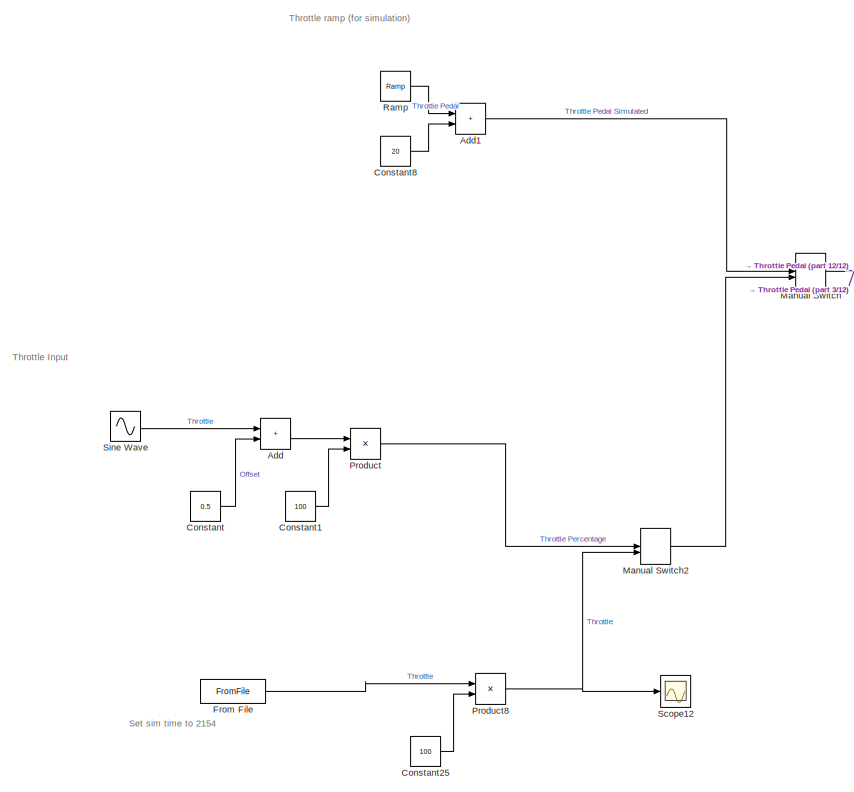
[diagram: root canvas - part 1/12, top left region]
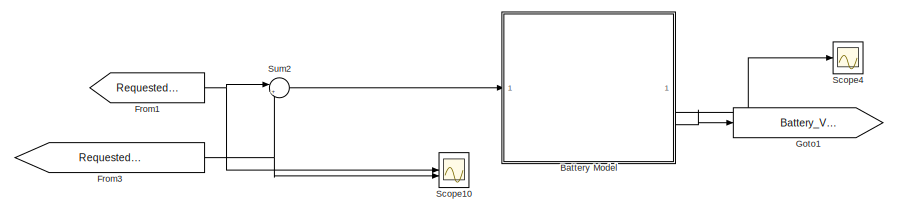
[diagram: root canvas - part 2/12, top right region]
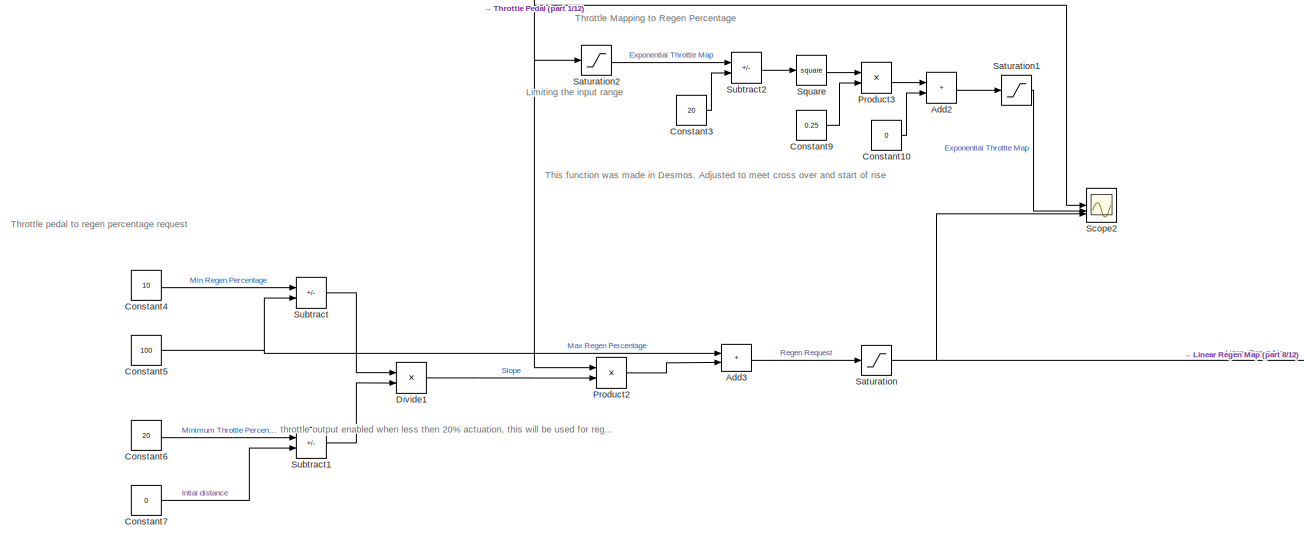
[diagram: root canvas - part 3/12, top center region]
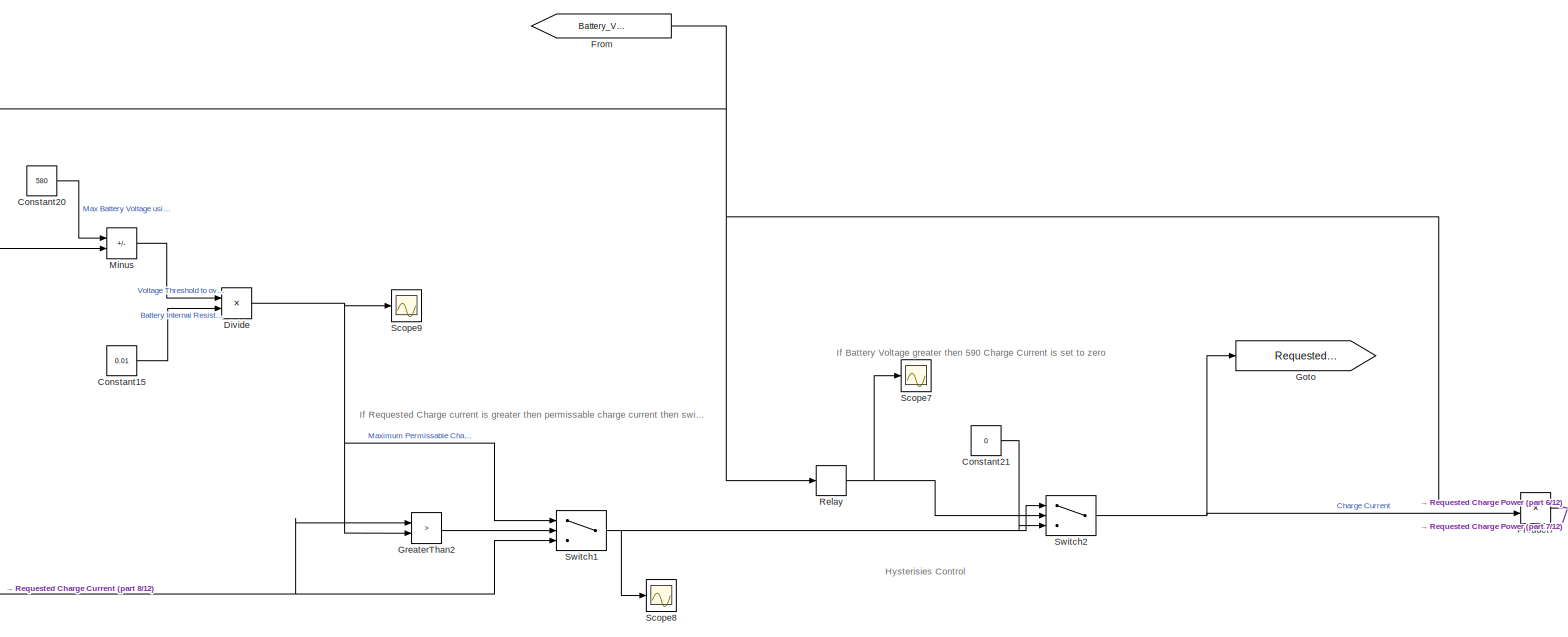
[diagram: root canvas - part 4/12, middle right region]
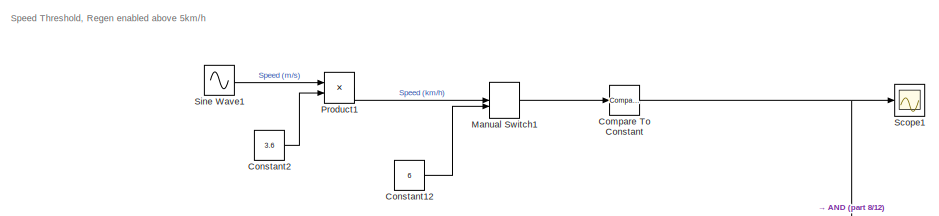
[diagram: root canvas - part 5/12, middle left region]
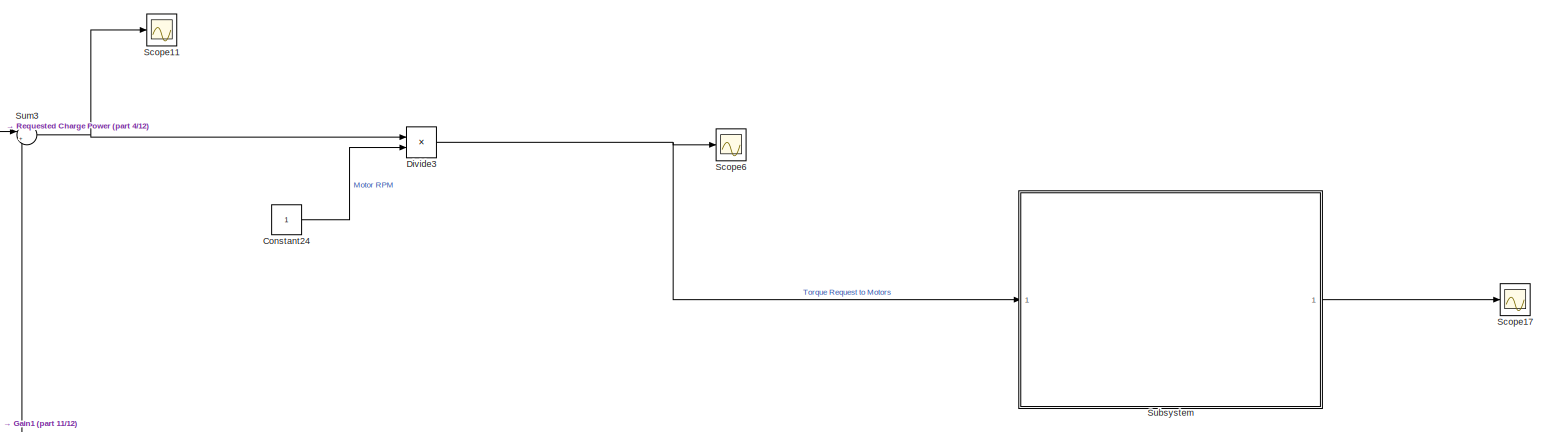
[diagram: root canvas - part 6/12, middle right region]
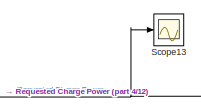
[diagram: root canvas - part 7/12, middle right region]
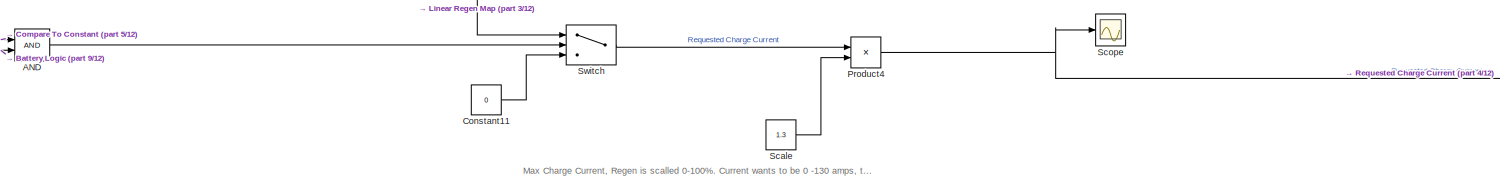
[diagram: root canvas - part 8/12, central region]
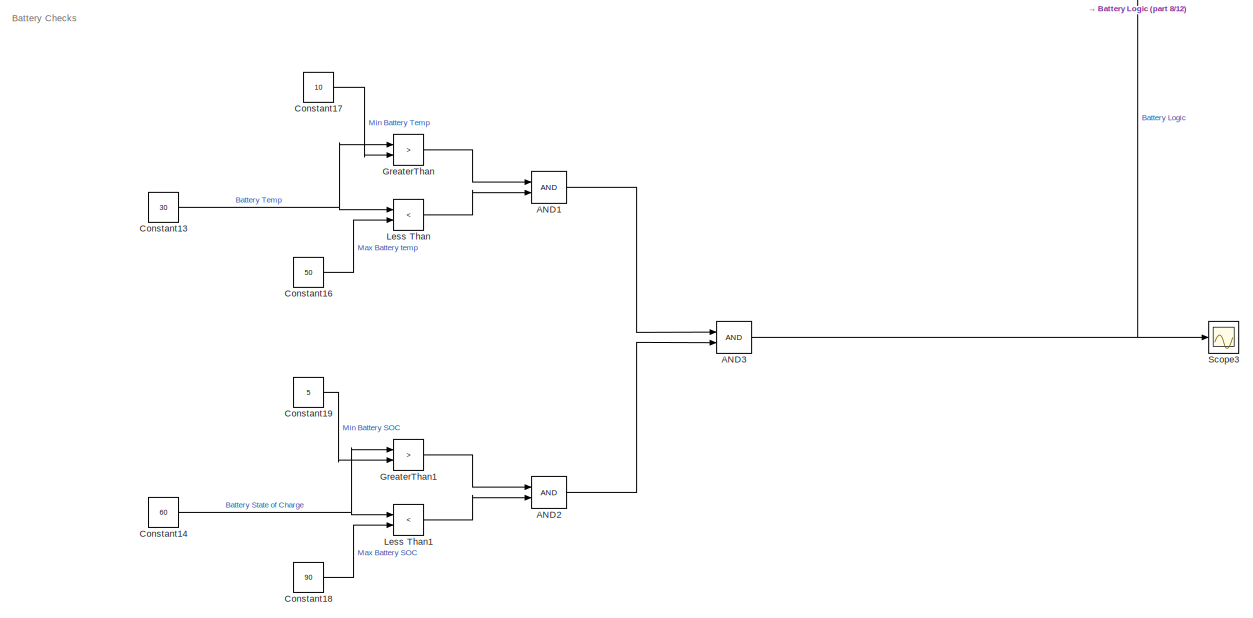
[diagram: root canvas - part 9/12, central region]
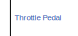
[diagram: root canvas - part 10/12, middle left region]
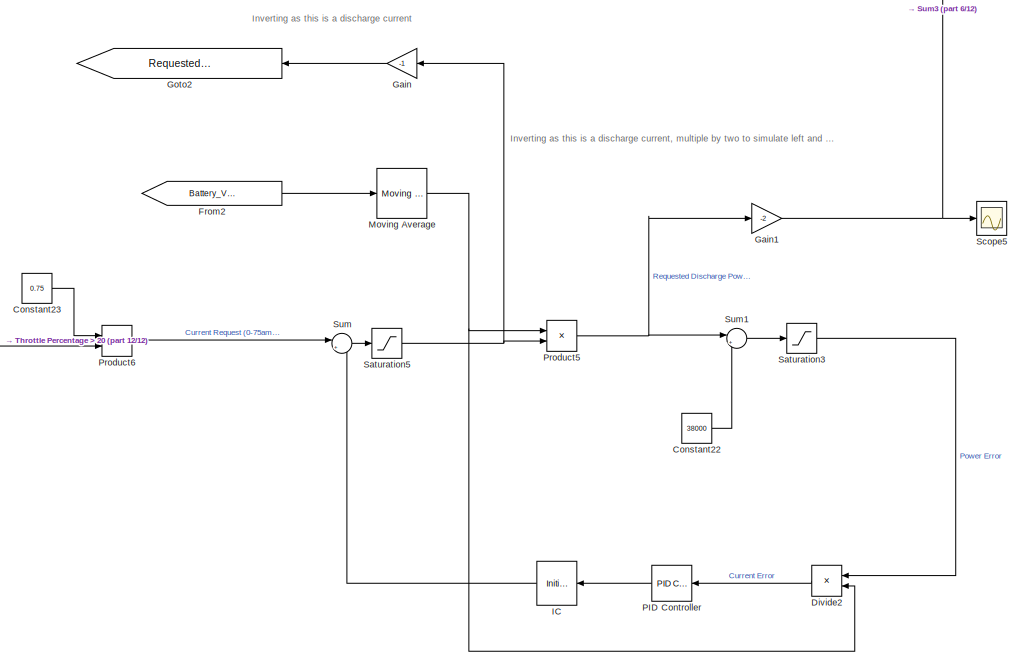
[diagram: root canvas - part 11/12, bottom center region]
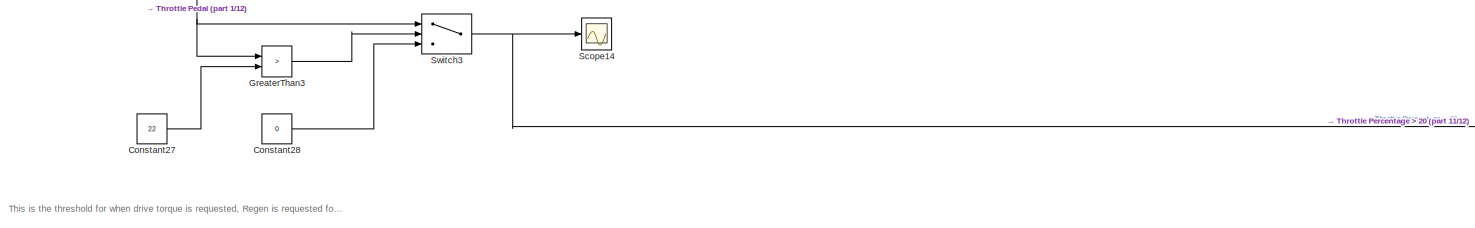
[diagram: root canvas - part 12/12, bottom left region]
MODEL slx_a7f5a27d71c5
KIND model
CONFIG AbsTol = auto
CONFIG EnableMultiTasking = off
CONFIG FixedStep = auto
CONFIG MaxStep = auto
CONFIG MinStep = auto
CONFIG RelTol = 1e-3
CONFIG SampleTimeConstraint = Unconstrained
CONFIG SolverName = VariableStepAuto
CONFIG StartTime = 0.0
CONFIG StopTime = 10
BLOCK [Logic] AND
  AllPortsSameDT = off
  IconShape = distinctive
  OutDataTypeStr = boolean
BLOCK [Logic] AND1
  AllPortsSameDT = off
  IconShape = distinctive
  OutDataTypeStr = boolean
BLOCK [Logic] AND2
  AllPortsSameDT = off
  IconShape = distinctive
  OutDataTypeStr = boolean
BLOCK [Logic] AND3
  AllPortsSameDT = off
  IconShape = distinctive
  OutDataTypeStr = boolean
BLOCK [Sum] Add
  IconShape = rectangular
BLOCK [Sum] Add1
  IconShape = rectangular
BLOCK [Sum] Add2
  IconShape = rectangular
BLOCK [Sum] Add3
  IconShape = rectangular
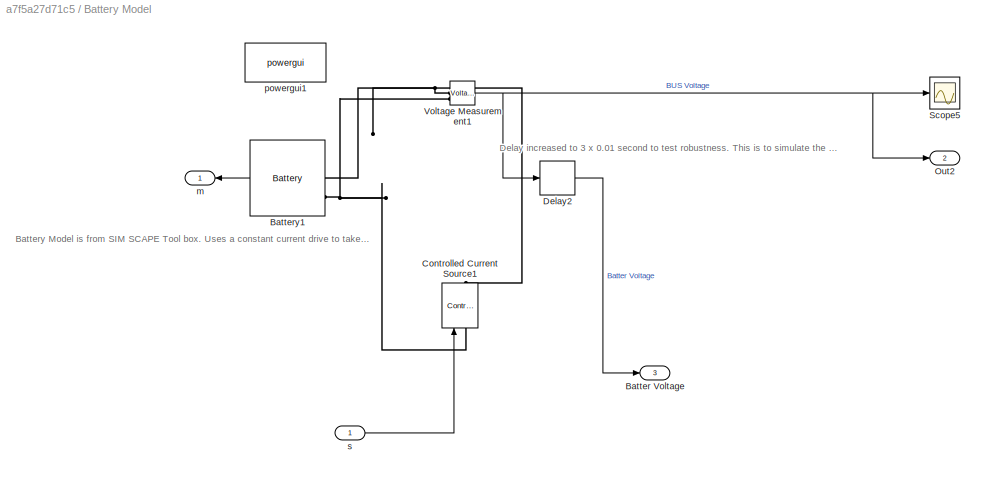
BLOCK [SubSystem] Battery Model
BLOCK [Outport] Battery Model/Batter Voltage
  Port = 3
BLOCK [Reference] Battery Model/Battery1  REF=spsBatteryLib/Battery
  LibrarySourceBlock = sps_lib/Sources/Battery
  SourceBlock = spsBatteryLib/Battery
  SourceType = Battery
BLOCK [Reference] Battery Model/Controlled Current Source1  REF=spsControlledCurrentSourceLib/Controlled Current Source
  LibrarySourceBlock = sps_lib/Sources/Controlled Current Source
  SourceBlock = spsControlledCurrentSourceLib/Controlled Current Source
  SourceType = Controlled Current Source
BLOCK [Delay] Battery Model/Delay2
  DelayLength = 5
  InitialCondition = 580
  InputPortMap = u0
BLOCK [Outport] Battery Model/Out2
  Port = 2
BLOCK [Scope] Battery Model/Scope5
  Floating = off
  NumInputPorts = 1
  ScopeSpecificationString = Simulink.scopes.TimeScopeBlockCfg('CurrentConfiguration', extmgr.ConfigurationSet(extmgr.Configuration('Core','General UI',true),extmgr.Configuration('Core','Source UI',true),extmgr.Configuration('Sources','WiredSimulink',true,'DataLoggingVariableName','ScopeData1'),extmgr.Configuration('Visuals','Time Domain',true,'SerializedDisplays',{struct('MinYLimReal','576.69043','MaxYLimReal','580.29452','Y...<+1550ch>
BLOCK [Reference] Battery Model/Voltage Measurement1  REF=spsVoltageMeasurementLib/Voltage Measurement
  LibrarySourceBlock = sps_lib/Sensors and Measurements/Voltage Measurement
  SourceBlock = spsVoltageMeasurementLib/Voltage Measurement
  SourceType = Voltage Measurement
  UserDataPersistent = on
BLOCK [Outport] Battery Model/m
BLOCK [Reference] Battery Model/powergui1  REF=sps_lib/powergui
  LibrarySourceBlock = sps_lib/powergui
  Priority = 1
  SourceBlock = sps_lib/powergui
  SourceType = PSB option menu block
BLOCK [Inport] Battery Model/s
BLOCK [Reference] Compare To Constant  REF=simulink/Logic and Bit
Operations/Compare
To Constant
  SourceBlock = simulink/Logic and Bit\nOperations/Compare\nTo Constant
  SourceType = Compare To Constant
BLOCK [Constant] Constant
  Value = 0.5
BLOCK [Constant] Constant1
  Value = 100
BLOCK [Constant] Constant10
  Value = 0
BLOCK [Constant] Constant11
  Value = 0
BLOCK [Constant] Constant12
  Value = 6
BLOCK [Constant] Constant13
  Value = 30
BLOCK [Constant] Constant14
  Value = 60
BLOCK [Constant] Constant15
  Value = 0.01
BLOCK [Constant] Constant16
  Value = 50
BLOCK [Constant] Constant17
  Value = 10
BLOCK [Constant] Constant18
  Value = 90
BLOCK [Constant] Constant19
  Value = 5
BLOCK [Constant] Constant2
  Value = 3.6
BLOCK [Constant] Constant20
  Value = 580
BLOCK [Constant] Constant21
  Value = 0
BLOCK [Constant] Constant22
  Value = 38000
BLOCK [Constant] Constant23
  Value = 0.75
BLOCK [Constant] Constant24
BLOCK [Constant] Constant25
  Value = 100
BLOCK [Constant] Constant27
  Value = 22
BLOCK [Constant] Constant28
  Value = 0
BLOCK [Constant] Constant3
  Value = 20
BLOCK [Constant] Constant4
  Value = 10
BLOCK [Constant] Constant5
  Value = 100
BLOCK [Constant] Constant6
  Value = 20
BLOCK [Constant] Constant7
  Value = 0
BLOCK [Constant] Constant8
  Value = 20
BLOCK [Constant] Constant9
  Value = 0.25
BLOCK [Product] Divide
  Inputs = */
BLOCK [Product] Divide1
  Inputs = */
BLOCK [Product] Divide2
  Inputs = */
BLOCK [Product] Divide3
  Inputs = */
BLOCK [From] From
  GotoTag = Battery_Voltage
BLOCK [FromFile] From File
  FileName = endurancedata.mat
  SampleTime = 0.01
BLOCK [From] From1
  GotoTag = Requested_Current
BLOCK [From] From2
  GotoTag = Battery_Voltage
BLOCK [From] From3
  GotoTag = Requested_Current_Discharge
BLOCK [Gain] Gain
  Gain = -1
BLOCK [Gain] Gain1
  Gain = -2
BLOCK [Goto] Goto
  GotoTag = Requested_Current
BLOCK [Goto] Goto1
  GotoTag = Battery_Voltage
BLOCK [Goto] Goto2
  GotoTag = Requested_Current_Discharge
BLOCK [RelationalOperator] GreaterThan
  InputSameDT = off
  Operator = >
  OutDataTypeStr = boolean
  RndMeth = Simplest
BLOCK [RelationalOperator] GreaterThan1
  InputSameDT = off
  Operator = >
  OutDataTypeStr = boolean
  RndMeth = Simplest
BLOCK [RelationalOperator] GreaterThan2
  InputSameDT = off
  Operator = >
  OutDataTypeStr = boolean
  RndMeth = Simplest
BLOCK [RelationalOperator] GreaterThan3
  InputSameDT = off
  Operator = >
  OutDataTypeStr = boolean
  RndMeth = Simplest
BLOCK [InitialCondition] IC
  Value = 0
BLOCK [RelationalOperator] Less Than
  InputSameDT = off
  Operator = <
  OutDataTypeStr = boolean
  RndMeth = Simplest
BLOCK [RelationalOperator] Less Than1
  InputSameDT = off
  Operator = <
  OutDataTypeStr = boolean
  RndMeth = Simplest
BLOCK [ManualSwitch] Manual Switch
  CurrentSetting = 0
BLOCK [ManualSwitch] Manual Switch1
  CurrentSetting = 0
BLOCK [ManualSwitch] Manual Switch2
  CurrentSetting = 0
BLOCK [Sum] Minus
  IconShape = rectangular
  Inputs = +-
BLOCK [Reference] Moving Average  REF=dspstat3/Moving
Average
  SourceBlock = dspstat3/Moving\nAverage
  SourceType = dsp.simulink.MovingAverage
BLOCK [Reference] PID Controller  REF=slpidlib/PID Controller
  LibrarySourceBlock = simulink/Continuous/PID Controller
  SourceBlock = slpidlib/PID Controller
  SourceType = PID 1dof
BLOCK [Product] Product
BLOCK [Product] Product1
BLOCK [Product] Product2
BLOCK [Product] Product3
BLOCK [Product] Product4
BLOCK [Product] Product5
BLOCK [Product] Product6
BLOCK [Product] Product7
BLOCK [Product] Product8
BLOCK [Reference] Ramp  REF=simulink/Sources/Ramp
  SourceBlock = simulink/Sources/Ramp
  SourceType = Ramp
BLOCK [Relay] Relay
  OffOutputValue = 1
  OffSwitchValue = 585
  OnOutputValue = 0
  OnSwitchValue = 590
BLOCK [Saturate] Saturation
  LowerLimit = 0
  UpperLimit = 100
BLOCK [Saturate] Saturation1
  LowerLimit = 0
  UpperLimit = 100
BLOCK [Saturate] Saturation2
  LowerLimit = 0
  UpperLimit = 20
BLOCK [Saturate] Saturation3
  LowerLimit = 0
  UpperLimit = inf
BLOCK [Saturate] Saturation5
  LowerLimit = 0
  UpperLimit = inf
BLOCK [Constant] Scale
  Value = 1.3
BLOCK [Scope] Scope
  Floating = off
  NumInputPorts = 1
  ScopeSpecificationString = Simulink.scopes.TimeScopeBlockCfg('CurrentConfiguration', extmgr.ConfigurationSet(extmgr.Configuration('Core','General UI',true),extmgr.Configuration('Core','Source UI',true),extmgr.Configuration('Sources','WiredSimulink',true,'DataLoggingVariableName','ScopeData5'),extmgr.Configuration('Visuals','Time Domain',true,'SerializedDisplays',{struct('MinYLimReal','-18.74988','MaxYLimReal','168.74892','Y...<+1482ch>
BLOCK [Scope] Scope1
  Floating = off
  NumInputPorts = 1
  ScopeSpecificationString = Simulink.scopes.TimeScopeBlockCfg('CurrentConfiguration', extmgr.ConfigurationSet(extmgr.Configuration('Core','General UI',true),extmgr.Configuration('Core','Source UI',true),extmgr.Configuration('Sources','WiredSimulink',true,'DataLoggingVariableName','ScopeData6'),extmgr.Configuration('Visuals','Time Domain',true),extmgr.Configuration('Tools','Plot Navigation',true),extmgr.Configuration('Tools',...<+40ch>
BLOCK [Scope] Scope10
  Floating = off
  NumInputPorts = 2
  ScopeSpecificationString = Simulink.scopes.TimeScopeBlockCfg('CurrentConfiguration', extmgr.ConfigurationSet(extmgr.Configuration('Core','General UI',true),extmgr.Configuration('Core','Source UI',true),extmgr.Configuration('Sources','WiredSimulink',true,'DataLoggingVariableName','ScopeData3'),extmgr.Configuration('Visuals','Time Domain',true,'SerializedDisplays',{struct('MinYLimReal','-89.375','MaxYLimReal','154.375','YLabe...<+1469ch>
BLOCK [Scope] Scope11
  Floating = off
  NumInputPorts = 1
  ScopeSpecificationString = Simulink.scopes.TimeScopeBlockCfg('CurrentConfiguration', extmgr.ConfigurationSet(extmgr.Configuration('Core','General UI',true),extmgr.Configuration('Core','Source UI',true),extmgr.Configuration('Sources','WiredSimulink',true,'DataLoggingVariableName','ScopeData4'),extmgr.Configuration('Visuals','Time Domain',true,'SerializedDisplays',{struct('MinYLimReal','-93978.61815','MaxYLimReal','93921.9598...<+1482ch>
BLOCK [Scope] Scope12
  Floating = off
  NumInputPorts = 1
  ScopeSpecificationString = Simulink.scopes.TimeScopeBlockCfg('CurrentConfiguration', extmgr.ConfigurationSet(extmgr.Configuration('Core','General UI',true),extmgr.Configuration('Core','Source UI',true),extmgr.Configuration('Sources','WiredSimulink',true,'DataLoggingVariableName','ScopeData6'),extmgr.Configuration('Visuals','Time Domain',true,'SerializedDisplays',{struct('MinYLimReal','-12.5','MaxYLimReal','112.5','YLabelRea...<+1442ch>
BLOCK [Scope] Scope13
  Floating = off
  NumInputPorts = 1
  ScopeSpecificationString = Simulink.scopes.TimeScopeBlockCfg('CurrentConfiguration', extmgr.ConfigurationSet(extmgr.Configuration('Core','General UI',true),extmgr.Configuration('Core','Source UI',true),extmgr.Configuration('Sources','WiredSimulink',true,'DataLoggingVariableName','ScopeData7'),extmgr.Configuration('Visuals','Time Domain',true,'SerializedDisplays',{struct('MinYLimReal','-9391.48775','MaxYLimReal','84523.38978...<+1496ch>
BLOCK [Scope] Scope14
  Floating = off
  NumInputPorts = 1
  ScopeSpecificationString = Simulink.scopes.TimeScopeBlockCfg('CurrentConfiguration', extmgr.ConfigurationSet(extmgr.Configuration('Core','General UI',true),extmgr.Configuration('Core','Source UI',true),extmgr.Configuration('Sources','WiredSimulink',true,'DataLoggingVariableName','ScopeData15'),extmgr.Configuration('Visuals','Time Domain',true,'SerializedDisplays',{struct('MinYLimReal','-12.5','MaxYLimReal','112.5','YLabelRe...<+1459ch>
BLOCK [Scope] Scope17
  Floating = off
  NumInputPorts = 1
  ScopeSpecificationString = Simulink.scopes.TimeScopeBlockCfg('CurrentConfiguration', extmgr.ConfigurationSet(extmgr.Configuration('Core','General UI',true),extmgr.Configuration('Core','Source UI',true),extmgr.Configuration('Sources','WiredSimulink',true,'DataLoggingVariableName','ScopeData3'),extmgr.Configuration('Visuals','Time Domain',true,'SerializedDisplays',{struct('MinYLimReal','7162.79104','MaxYLimReal','27162.79104'...<+1536ch>
BLOCK [Scope] Scope2
  Floating = off
  NumInputPorts = 3
  ScopeSpecificationString = Simulink.scopes.TimeScopeBlockCfg('CurrentConfiguration', extmgr.ConfigurationSet(extmgr.Configuration('Core','General UI',true),extmgr.Configuration('Core','Source UI',true),extmgr.Configuration('Sources','WiredSimulink',true,'DataLoggingVariableName','ScopeData7'),extmgr.Configuration('Visuals','Time Domain',true,'SerializedDisplays',{struct('MinYLimReal','-12.5','MaxYLimReal','112.49998','YLabe...<+1562ch>
BLOCK [Scope] Scope3
  Floating = off
  NumInputPorts = 1
  ScopeSpecificationString = Simulink.scopes.TimeScopeBlockCfg('CurrentConfiguration', extmgr.ConfigurationSet(extmgr.Configuration('Core','General UI',true),extmgr.Configuration('Core','Source UI',true),extmgr.Configuration('Sources','WiredSimulink',true,'DataLoggingVariableName','ScopeData8'),extmgr.Configuration('Visuals','Time Domain',true,'SerializedDisplays',{struct('MinYLimReal','0.9','MaxYLimReal','1.1','YLabelReal','...<+1462ch>
BLOCK [Scope] Scope4
  Floating = off
  NumInputPorts = 1
  ScopeSpecificationString = Simulink.scopes.TimeScopeBlockCfg('CurrentConfiguration', extmgr.ConfigurationSet(extmgr.Configuration('Core','General UI',true),extmgr.Configuration('Core','Source UI',true),extmgr.Configuration('Sources','WiredSimulink',true,'DataLoggingVariableName','ScopeData1'),extmgr.Configuration('Visuals','Time Domain',true,'SerializedDisplays',{struct('MinYLimReal','576.24435','MaxYLimReal','578.59291','Y...<+1487ch>
BLOCK [Scope] Scope5
  Floating = off
  NumInputPorts = 1
  ScopeSpecificationString = Simulink.scopes.TimeScopeBlockCfg('CurrentConfiguration', extmgr.ConfigurationSet(extmgr.Configuration('Core','General UI',true),extmgr.Configuration('Core','Source UI',true),extmgr.Configuration('Sources','WiredSimulink',true,'DataLoggingVariableName','ScopeData5'),extmgr.Configuration('Visuals','Time Domain',true,'SerializedDisplays',{struct('MinYLimReal','-76780.9487','MaxYLimReal','8531.21652'...<+1552ch>
BLOCK [Scope] Scope6
  Floating = off
  NumInputPorts = 1
  ScopeSpecificationString = Simulink.scopes.TimeScopeBlockCfg('CurrentConfiguration', extmgr.ConfigurationSet(extmgr.Configuration('Core','General UI',true),extmgr.Configuration('Core','Source UI',true),extmgr.Configuration('Sources','WiredSimulink',true,'DataLoggingVariableName','ScopeData2'),extmgr.Configuration('Visuals','Time Domain',true,'SerializedDisplays',{struct('MinYLimReal','-93978.61815','MaxYLimReal','93921.9598...<+1502ch>
BLOCK [Scope] Scope7
  Floating = off
  NumInputPorts = 1
  ScopeSpecificationString = Simulink.scopes.TimeScopeBlockCfg('CurrentConfiguration', extmgr.ConfigurationSet(extmgr.Configuration('Core','General UI',true),extmgr.Configuration('Core','Source UI',true),extmgr.Configuration('Sources','WiredSimulink',true,'DataLoggingVariableName','ScopeData2'),extmgr.Configuration('Visuals','Time Domain',true,'SerializedDisplays',{struct('MinYLimReal','-0.125','MaxYLimReal','1.125','YLabelRe...<+1485ch>
BLOCK [Scope] Scope8
  Floating = off
  NumInputPorts = 1
  ScopeSpecificationString = Simulink.scopes.TimeScopeBlockCfg('CurrentConfiguration', extmgr.ConfigurationSet(extmgr.Configuration('Core','General UI',true),extmgr.Configuration('Core','Source UI',true),extmgr.Configuration('Sources','WiredSimulink',true,'DataLoggingVariableName','ScopeData3'),extmgr.Configuration('Visuals','Time Domain',true,'SerializedDisplays',{struct('MinYLimReal','-16.25','MaxYLimReal','146.25','YLabelR...<+1472ch>
BLOCK [Scope] Scope9
  Floating = off
  NumInputPorts = 1
  ScopeSpecificationString = Simulink.scopes.TimeScopeBlockCfg('CurrentConfiguration', extmgr.ConfigurationSet(extmgr.Configuration('Core','General UI',true),extmgr.Configuration('Core','Source UI',true),extmgr.Configuration('Sources','WiredSimulink',true,'DataLoggingVariableName','ScopeData4'),extmgr.Configuration('Visuals','Time Domain',true,'SerializedDisplays',{struct('MinYLimReal','-43.15314','MaxYLimReal','388.37824','Y...<+1536ch>
BLOCK [Sin] Sine Wave
  Amplitude = 0.5
  SampleTime = 0
BLOCK [Sin] Sine Wave1
  SampleTime = 0
BLOCK [Math] Square
  Operator = square
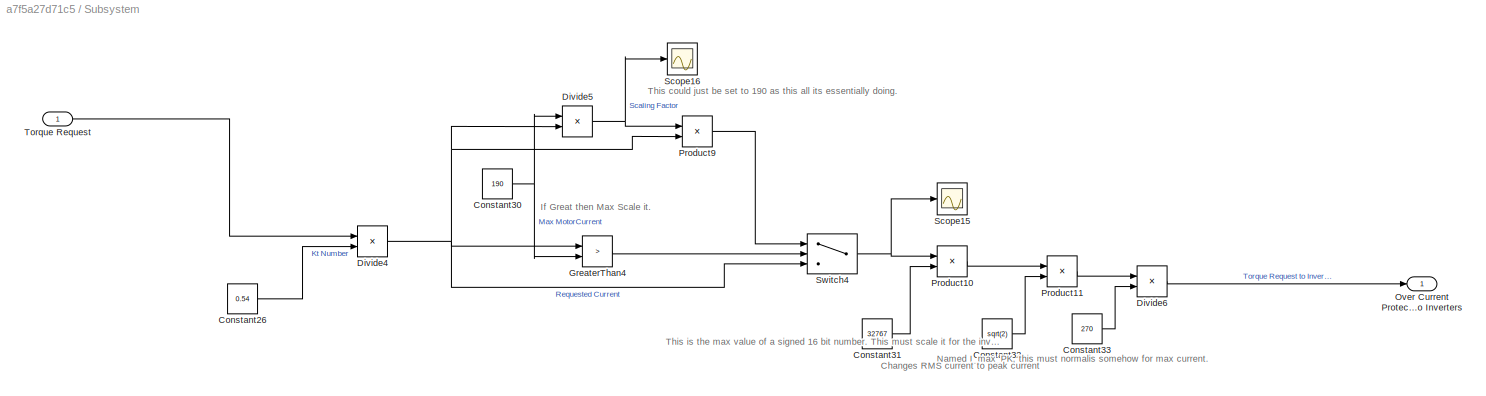
BLOCK [SubSystem] Subsystem
BLOCK [Constant] Subsystem/Constant26
  Value = 0.54
BLOCK [Constant] Subsystem/Constant30
  Value = 190
BLOCK [Constant] Subsystem/Constant31
  Value = 32767
BLOCK [Constant] Subsystem/Constant32
  Value = sqrt(2)
BLOCK [Constant] Subsystem/Constant33
  Value = 270
BLOCK [Product] Subsystem/Divide4
  Inputs = */
BLOCK [Product] Subsystem/Divide5
  Inputs = */
BLOCK [Product] Subsystem/Divide6
  Inputs = */
BLOCK [RelationalOperator] Subsystem/GreaterThan4
  InputSameDT = off
  Operator = >
  OutDataTypeStr = boolean
  RndMeth = Simplest
BLOCK [Outport] Subsystem/Over Current Protected Torque Request to Inverters
BLOCK [Product] Subsystem/Product10
BLOCK [Product] Subsystem/Product11
BLOCK [Product] Subsystem/Product9
BLOCK [Scope] Subsystem/Scope15
  Floating = off
  NumInputPorts = 1
  ScopeSpecificationString = Simulink.scopes.TimeScopeBlockCfg('CurrentConfiguration', extmgr.ConfigurationSet(extmgr.Configuration('Core','General UI',true),extmgr.Configuration('Core','Source UI',true),extmgr.Configuration('Sources','WiredSimulink',true,'DataLoggingVariableName','ScopeData1'),extmgr.Configuration('Visuals','Time Domain',true,'SerializedDisplays',{struct('MinYLimReal','90.00000','MaxYLimReal','110.00000','YL...<+1500ch>
BLOCK [Scope] Subsystem/Scope16
  Floating = off
  NumInputPorts = 1
  ScopeSpecificationString = Simulink.scopes.TimeScopeBlockCfg('CurrentConfiguration', extmgr.ConfigurationSet(extmgr.Configuration('Core','General UI',true),extmgr.Configuration('Core','Source UI',true),extmgr.Configuration('Sources','WiredSimulink',true,'DataLoggingVariableName','ScopeData2'),extmgr.Configuration('Visuals','Time Domain',true,'SerializedDisplays',{struct('MinYLimReal','0.9','MaxYLimReal','2.9','YLabelReal','...<+1463ch>
BLOCK [Switch] Subsystem/Switch4
  Criteria = u2 > Threshold
  InputSameDT = off
  SaturateOnIntegerOverflow = off
  Threshold = 0.5
BLOCK [Inport] Subsystem/Torque Request
BLOCK [Sum] Subtract
  IconShape = rectangular
  Inputs = +-
BLOCK [Sum] Subtract1
  IconShape = rectangular
  Inputs = +-
BLOCK [Sum] Subtract2
  IconShape = rectangular
  Inputs = +-
BLOCK [Sum] Sum
  Inputs = |+-
BLOCK [Sum] Sum1
  Inputs = |+-
BLOCK [Sum] Sum2
  Inputs = |++
BLOCK [Sum] Sum3
  Inputs = |++
BLOCK [Switch] Switch
  Criteria = u2 > Threshold
  InputSameDT = off
  SaturateOnIntegerOverflow = off
BLOCK [Switch] Switch1
  Criteria = u2 > Threshold
  InputSameDT = off
  SaturateOnIntegerOverflow = off
BLOCK [Switch] Switch2
  Criteria = u2 > Threshold
  InputSameDT = off
  SaturateOnIntegerOverflow = off
  Threshold = 0.5
BLOCK [Switch] Switch3
  Criteria = u2 > Threshold
  InputSameDT = off
  SaturateOnIntegerOverflow = off
ANNOTATION (root): Battery Checks
ANNOTATION (root): Hysterisies Control
ANNOTATION (root): If Battery Voltage greater then 590 Charge Current is set to zero
ANNOTATION (root): If Requested Charge current is greater then permissable charge current then switch to permisable
ANNOTATION (root): Inverting as this is a discharge current
ANNOTATION (root): Inverting as this is a discharge current, multiple by two to simulate left and right motor controllers
ANNOTATION (root): Limiting the input range
ANNOTATION (root): Max Charge Current, Regen is scalled 0-100%. Current wants to be 0 -130 amps, therfore scale by 1.3. 600V*130amps = 70kw
ANNOTATION (root): Set sim time to 2154
ANNOTATION (root): Speed Threshold, Regen enabled above 5km/h
ANNOTATION (root): This function was made in Desmos. Adjusted to meet cross over and start of rise
ANNOTATION (root): This is the threshold for when drive torque is requested, Regen is requested for less then 20%, and throttle is applied for greater then 22%, This gives a 2% deadband
ANNOTATION (root): Throttle Input
ANNOTATION (root): Throttle Mapping to Regen Percentage
ANNOTATION (root): Throttle pedal to regen percentage request
ANNOTATION (root): Throttle ramp (for simulation)
ANNOTATION (root): throttle output enabled when less then 20% actuation, this will be used for regen
ANNOTATION Battery Model: Battery Model is from SIM SCAPE Tool box. Uses a constant current drive to take the current request from controller and apply load to the battery
ANNOTATION Battery Model: Delay increased to 3 x 0.01 second to test robustness. This is to simulate the delay of having voltage measurments sent to the VCU
ANNOTATION Subsystem: Changes RMS current to peak current
ANNOTATION Subsystem: If Great then Max Scale it.
ANNOTATION Subsystem: Named I_max_PK, this must normalis somehow for max current.
ANNOTATION Subsystem: This could just be set to 190 as this all its essentially doing.
ANNOTATION Subsystem: This is the max value of a signed 16 bit number. This must scale it for the inverters
LINE AND1:1 -> AND3:1
LINE AND2:1 -> AND3:2
NET AND3:1 -> AND:2, Scope3:1
LINE AND:1 -> Switch:2
LINE Add1:1 -> Manual Switch:1
LINE Add2:1 -> Saturation1:1
LINE Add3:1 -> Saturation:1
LINE Add:1 -> Product:1
LINE Battery Model/Battery1:1 -> Battery Model/m:1
LINE Battery Model/Delay2:1 -> Battery Model/Batter Voltage:1
NET Battery Model/Voltage Measurement1:1 -> Battery Model/Delay2:1, Battery Model/Out2:1, Battery Model/Scope5:1
LINE Battery Model/s:1 -> Battery Model/Controlled Current Source1:1
LINE Battery Model:2 -> Scope4:1
LINE Battery Model:3 -> Goto1:1
NET Compare To Constant:1 -> AND:1, Scope1:1
LINE Constant10:1 -> Add2:2
LINE Constant11:1 -> Switch:3
LINE Constant12:1 -> Manual Switch1:2
NET Constant13:1 -> GreaterThan:1, Less Than:1
NET Constant14:1 -> GreaterThan1:1, Less Than1:1
LINE Constant15:1 -> Divide:2
LINE Constant16:1 -> Less Than:2
LINE Constant17:1 -> GreaterThan:2
LINE Constant18:1 -> Less Than1:2
LINE Constant19:1 -> GreaterThan1:2
LINE Constant1:1 -> Product:2
LINE Constant20:1 -> Minus:1
LINE Constant21:1 -> Switch2:3
LINE Constant22:1 -> Sum1:2
LINE Constant23:1 -> Product6:1
LINE Constant24:1 -> Divide3:2
LINE Constant25:1 -> Product8:2
LINE Constant27:1 -> GreaterThan3:2
LINE Constant28:1 -> Switch3:3
LINE Constant2:1 -> Product1:2
LINE Constant3:1 -> Subtract2:2
LINE Constant4:1 -> Subtract:1
NET Constant5:1 -> Add3:1, Subtract:2
LINE Constant6:1 -> Subtract1:1
LINE Constant7:1 -> Subtract1:2
LINE Constant8:1 -> Add1:2
LINE Constant9:1 -> Product3:2
LINE Constant:1 -> Add:2
LINE Divide1:1 -> Product2:2
LINE Divide2:1 -> PID Controller:1
NET Divide3:1 -> Scope6:1, Subsystem:1
NET Divide:1 -> GreaterThan2:2, Scope9:1, Switch1:1
LINE From File:1 -> Product8:1
NET From1:1 -> Scope10:1, Sum2:1
LINE From2:1 -> Moving Average:1
NET From3:1 -> Scope10:2, Sum2:2
NET From:1 -> Minus:2, Product7:1, Relay:1
NET Gain1:1 -> Scope5:1, Sum3:2
LINE Gain:1 -> Goto2:1
LINE GreaterThan1:1 -> AND2:1
LINE GreaterThan2:1 -> Switch1:2
LINE GreaterThan3:1 -> Switch3:2
LINE GreaterThan:1 -> AND1:1
LINE IC:1 -> Sum:2
LINE Less Than1:1 -> AND2:2
LINE Less Than:1 -> AND1:2
LINE Manual Switch1:1 -> Compare To Constant:1
LINE Manual Switch2:1 -> Manual Switch:2
NET Manual Switch:1 -> GreaterThan3:1, Product2:1, Saturation2:1, Scope2:1, Switch3:1
LINE Minus:1 -> Divide:1
NET Moving Average:1 -> Divide2:2, Product5:1
LINE PID Controller:1 -> IC:1
LINE Product1:1 -> Manual Switch1:1
LINE Product2:1 -> Add3:2
LINE Product3:1 -> Add2:1
NET Product4:1 -> GreaterThan2:1, Scope:1, Switch1:3
NET Product5:1 -> Gain1:1, Sum1:1
LINE Product6:1 -> Sum:1
NET Product7:1 -> Scope13:1, Sum3:1
NET Product8:1 -> Manual Switch2:2, Scope12:1
LINE Product:1 -> Manual Switch2:1
LINE Ramp:1 -> Add1:1
NET Relay:1 -> Scope7:1, Switch2:2
LINE Saturation1:1 -> Scope2:2
LINE Saturation2:1 -> Subtract2:1
LINE Saturation3:1 -> Divide2:1
NET Saturation5:1 -> Gain:1, Product5:2
NET Saturation:1 -> Scope2:3, Switch:1
LINE Scale:1 -> Product4:2
LINE Sine Wave1:1 -> Product1:1
LINE Sine Wave:1 -> Add:1
LINE Square:1 -> Product3:1
LINE Subsystem/Constant26:1 -> Subsystem/Divide4:2
NET Subsystem/Constant30:1 -> Subsystem/Divide5:1, Subsystem/GreaterThan4:2
LINE Subsystem/Constant31:1 -> Subsystem/Product10:2
LINE Subsystem/Constant32:1 -> Subsystem/Product11:2
LINE Subsystem/Constant33:1 -> Subsystem/Divide6:2
NET Subsystem/Divide4:1 -> Subsystem/Divide5:2, Subsystem/GreaterThan4:1, Subsystem/Product9:2, Subsystem/Switch4:3
NET Subsystem/Divide5:1 -> Subsystem/Product9:1, Subsystem/Scope16:1
LINE Subsystem/Divide6:1 -> Subsystem/Over Current Protected Torque Request to Inverters:1
LINE Subsystem/GreaterThan4:1 -> Subsystem/Switch4:2
LINE Subsystem/Product10:1 -> Subsystem/Product11:1
LINE Subsystem/Product11:1 -> Subsystem/Divide6:1
LINE Subsystem/Product9:1 -> Subsystem/Switch4:1
NET Subsystem/Switch4:1 -> Subsystem/Product10:1, Subsystem/Scope15:1
LINE Subsystem/Torque Request:1 -> Subsystem/Divide4:1
LINE Subsystem:1 -> Scope17:1
LINE Subtract1:1 -> Divide1:2
LINE Subtract2:1 -> Square:1
LINE Subtract:1 -> Divide1:1
LINE Sum1:1 -> Saturation3:1
LINE Sum2:1 -> Battery Model:1
NET Sum3:1 -> Divide3:1, Scope11:1
LINE Sum:1 -> Saturation5:1
NET Switch1:1 -> Scope8:1, Switch2:1
NET Switch2:1 -> Goto:1, Product7:2
NET Switch3:1 -> Product6:2, Scope14:1
LINE Switch:1 -> Product4:1
PNET net1: Battery Model/Battery1:LConn1 -- Battery Model/Controlled Current Source1:RConn1 -- Battery Model/Voltage Measurement1:LConn1
PNET net2: Battery Model/Battery1:LConn2 -- Battery Model/Controlled Current Source1:LConn1 -- Battery Model/Voltage Measurement1:LConn2
note: NET lines group one-source signal fan-out (src -> all destinations, sorted); 1:1 wires keep LINE; PNET lines group multi-terminal physical nets as a canonical sorted terminal list (undirected conserving connections); 2-terminal nets keep the pairwise PLINE form
